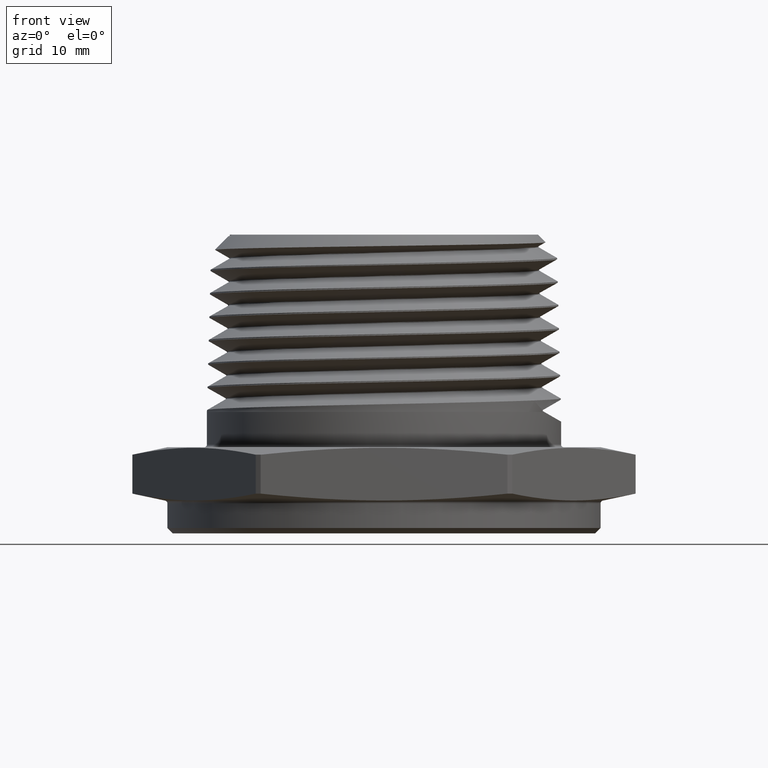
[diagram: clean part render]
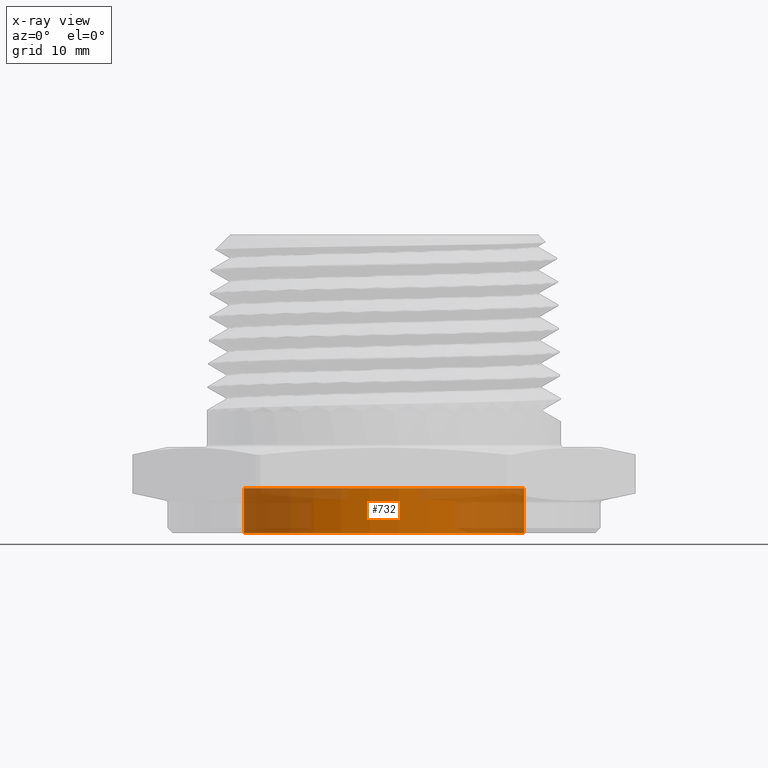
[diagram: x-ray — body ghosted, one internal face saturated and labeled with its STEP entity id]
A machine part, front view, then the same camera in x-ray: the body is ghosted and one INTERNAL B-rep face — a face not visible from any outside direction — is saturated and labeled: STEP entity #732.
In plain terms, the highlighted cylindrical surface (partial cylindrical patch) has radius 13.208 mm, axis along (-0, -0, -1).
Its self-contained STEP definition (entity closure, byte-faithful):
#732 = ADVANCED_FACE ( 'NONE', ( #5979 ), #5978, .F. ) ;
#742 = ORIENTED_EDGE ( 'NONE', *, *, #827, .F. ) ;
#744 = ORIENTED_EDGE ( 'NONE', *, *, #824, .F. ) ;
#746 = ORIENTED_EDGE ( 'NONE', *, *, #825, .T. ) ;
#824 = EDGE_CURVE ( 'NONE', #1592, #1576, #6052, .T. ) ;
#825 = EDGE_CURVE ( 'NONE', #1572, #1576, #6054, .T. ) ;
#826 = EDGE_CURVE ( 'NONE', #2354, #1572, #6055, .T. ) ;
#827 = EDGE_CURVE ( 'NONE', #2354, #1592, #6058, .T. ) ;
#976 = AXIS2_PLACEMENT_3D ( 'NONE', #1832, #1833, #1831 ) ;
#1014 = AXIS2_PLACEMENT_3D ( 'NONE', #4684, #4685, #4686 ) ;
#1015 = AXIS2_PLACEMENT_3D ( 'NONE', #4689, #4690, #4691 ) ;
#1388 = CARTESIAN_POINT ( 'NONE',  ( 0.5200000000000000200, 6.368163355566237400E-017, -0.1200000000000000000 ) ) ;
#1391 = CARTESIAN_POINT ( 'NONE',  ( -0.5200000000000000200, 0.0000000000000000000, -0.1200000000000000000 ) ) ;
#1407 = CARTESIAN_POINT ( 'NONE',  ( -0.5200000000000000200, 0.0000000000000000000, 0.04748031496062989100 ) ) ;
#1434 = CARTESIAN_POINT ( 'NONE',  ( 0.5200000000000000200, 6.368163355566237400E-017, 0.04748031496062989100 ) ) ;
#1572 = VERTEX_POINT ( 'NONE', #1388 ) ;
#1576 = VERTEX_POINT ( 'NONE', #1391 ) ;
#1592 = VERTEX_POINT ( 'NONE', #1407 ) ;
#1831 = DIRECTION ( 'NONE',  ( -1.000000000000000000, 0.0000000000000000000, 0.0000000000000000000 ) ) ;
#1832 = CARTESIAN_POINT ( 'NONE',  ( 2.449293598294655500E-018, 0.0000000000000000000, -0.1200000000000000000 ) ) ;
#1833 = DIRECTION ( 'NONE',  ( -0.0000000000000000000, -0.0000000000000000000, -1.000000000000000000 ) ) ;
#2354 = VERTEX_POINT ( 'NONE', #1434 ) ;
#4372 = EDGE_LOOP ( 'NONE', ( #742, #6765, #746, #744 ) ) ;
#4676 = DIRECTION ( 'NONE',  ( -0.0000000000000000000, -0.0000000000000000000, -1.000000000000000000 ) ) ;
#4677 = CARTESIAN_POINT ( 'NONE',  ( -0.5200000000000000200, 0.0000000000000000000, -0.1200000000000000000 ) ) ;
#4681 = DIRECTION ( 'NONE',  ( -0.0000000000000000000, -0.0000000000000000000, -1.000000000000000000 ) ) ;
#4683 = CARTESIAN_POINT ( 'NONE',  ( 0.5200000000000000200, 6.368163355566237400E-017, -0.1200000000000000000 ) ) ;
#4684 = CARTESIAN_POINT ( 'NONE',  ( 2.449293598294655500E-018, 0.0000000000000000000, -0.1200000000000000000 ) ) ;
#4685 = DIRECTION ( 'NONE',  ( -0.0000000000000000000, -0.0000000000000000000, -1.000000000000000000 ) ) ;
#4686 = DIRECTION ( 'NONE',  ( -1.000000000000000000, 0.0000000000000000000, 0.0000000000000000000 ) ) ;
#4689 = CARTESIAN_POINT ( 'NONE',  ( 2.449293598294655500E-018, 0.0000000000000000000, 0.04748031496062989100 ) ) ;
#4690 = DIRECTION ( 'NONE',  ( -0.0000000000000000000, -0.0000000000000000000, -1.000000000000000000 ) ) ;
#4691 = DIRECTION ( 'NONE',  ( -1.000000000000000000, 0.0000000000000000000, 0.0000000000000000000 ) ) ;
#5978 = CYLINDRICAL_SURFACE ( 'NONE', #976, 0.5200000000000000200 ) ;
#5979 = FACE_OUTER_BOUND ( 'NONE', #4372, .T. ) ;
#6052 = LINE ( 'NONE', #4677, #6056 ) ;
#6054 = CIRCLE ( 'NONE', #1014, 0.5200000000000000200 ) ;
#6055 = LINE ( 'NONE', #4683, #6059 ) ;
#6056 = VECTOR ( 'NONE', #4676, 39.37007874015748100 ) ;
#6058 = CIRCLE ( 'NONE', #1015, 0.5200000000000000200 ) ;
#6059 = VECTOR ( 'NONE', #4681, 39.37007874015748100 ) ;
#6765 = ORIENTED_EDGE ( 'NONE', *, *, #826, .T. ) ;